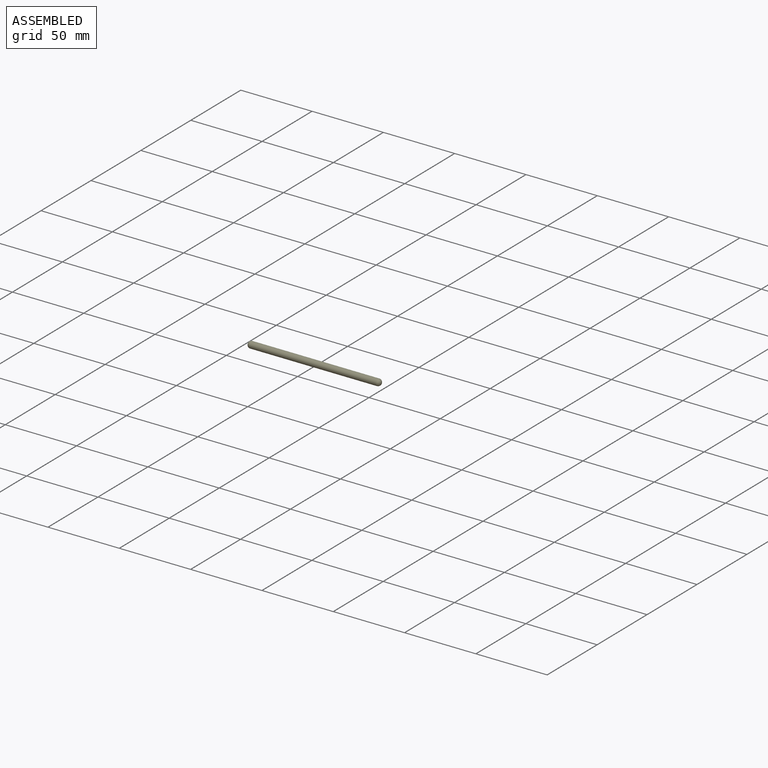
[diagram: assembled view]
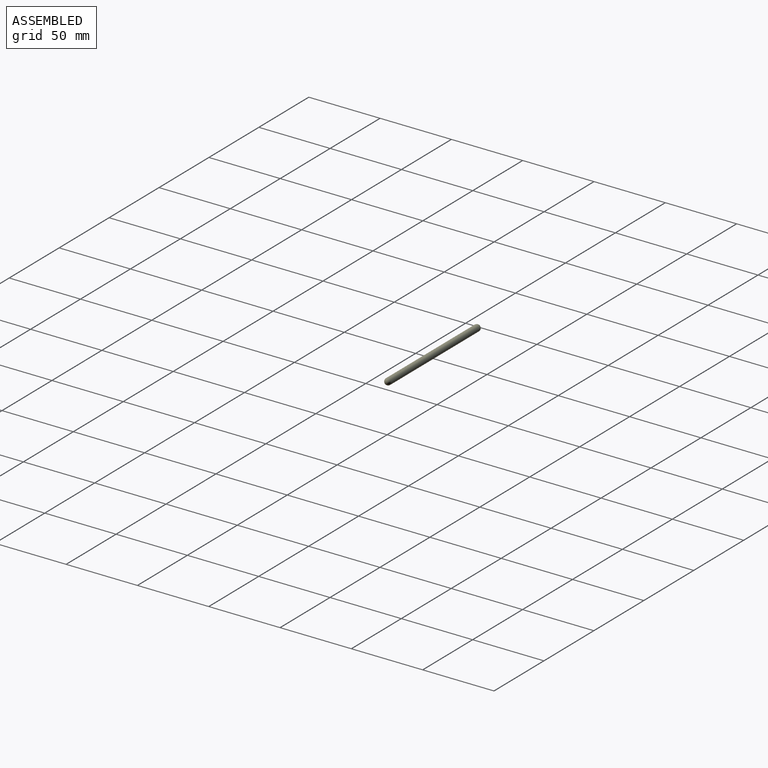
[diagram: assembled view, second angle]
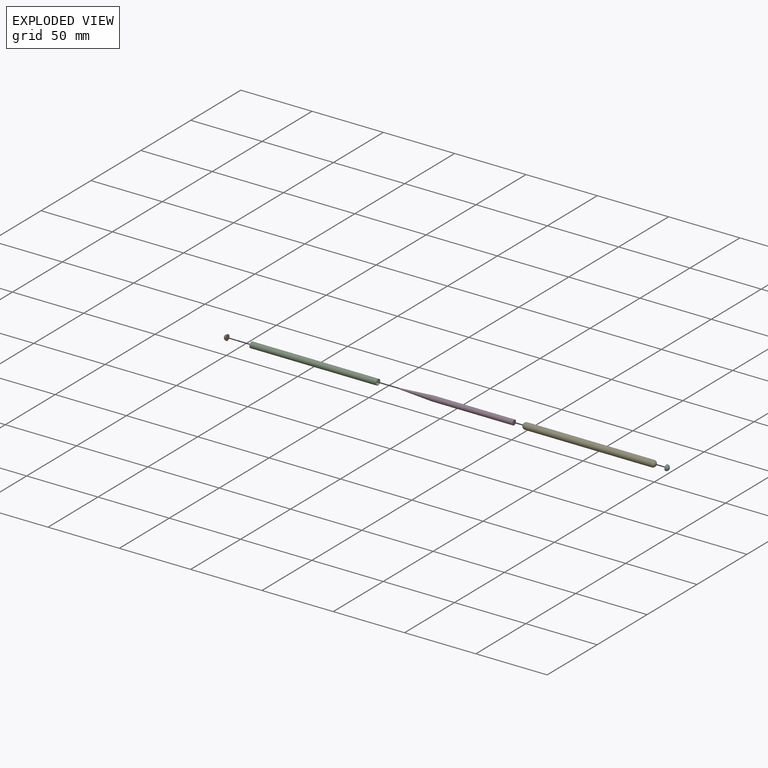
[diagram: exploded view]
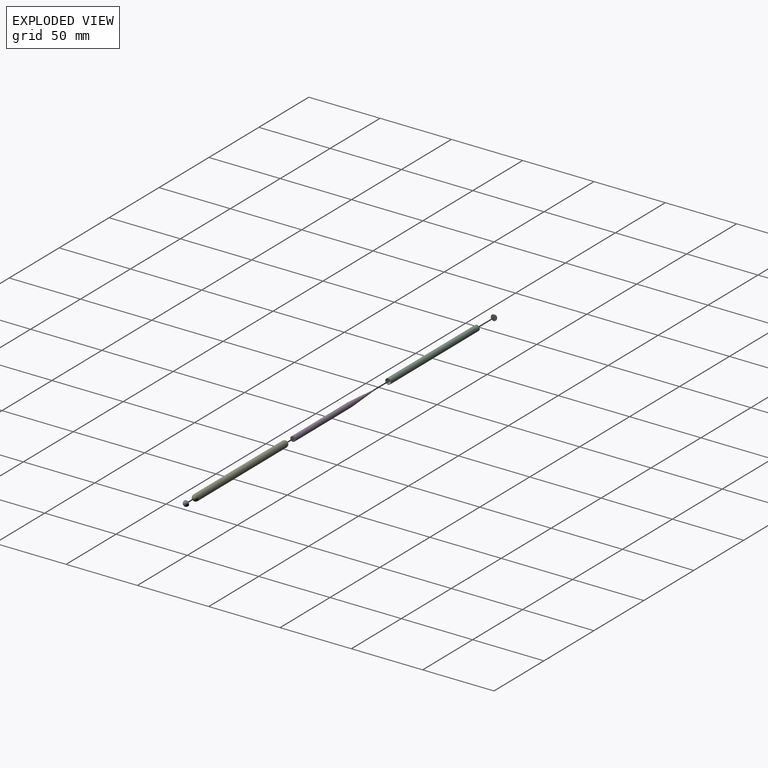
[diagram: exploded view, second angle]
ASSEMBLY  parts=6 mates=10
PART A: 4 faces, bbox 2.5x0.6x0.6 mm
  f0: cylinder r=0.22mm len=2.54mm, axis (-1,0,0), area 3.4mm2, adj f2,f3
  f1: cylinder r=0.32mm len=2.54mm, axis (-1,0,0), area 5.1mm2, adj f2,f3
  f2: plane 0.64x0.64mm, normal (1,0,0), area 0.2mm2, adj f0,f1
  f3: plane 0.64x0.64mm, normal (-1,0,0), area 0.2mm2, adj f0,f1
PART B: 2 faces, bbox 2x4.1x4.1 mm
  f0: sphere r=2.03mm, area 25.9mm2, adj f1
  f1: plane 4.06x4.06mm, normal (-1,0,0), area 13mm2, adj f0
PART C: 6 faces, bbox 88.9x4.1x4.1 mm
  f0: cylinder r=1.78mm len=57.15mm, axis (-1,0,0), area 638.5mm2, adj f1,f5
  f1: plane 4.06x4.06mm, normal (1,0,0), area 3mm2, adj f0,f2
  f2: cylinder r=2.03mm len=88.9mm, axis (-1,0,0), area 1135mm2, adj f1,f3
  f3: plane 4.06x4.06mm, normal (-1,0,0), area 12.9mm2, adj f2,f4
  f4: cone r=0.13mm half-angle=1.1deg, axis (1,0,0), area 7.6mm2, adj f3,f5
  f5: cone r=0.25mm half-angle=3.4deg, axis (1,0,0), area 162.4mm2, adj f0,f4
PART D: 5 faces, bbox 88.9x3.6x3.6 mm
  f0: plane 3.56x3.56mm, normal (1,0,0), area 9.9mm2, adj f1
  f1: cylinder r=1.78mm len=57.15mm, axis (-1,0,0), area 638.5mm2, adj f0,f2
  f2: cone r=1.78mm half-angle=3.4deg, axis (1,0,0), area 162.4mm2, adj f1,f3
  f3: cone r=0.25mm half-angle=1.1deg, axis (1,0,0), area 7.6mm2, adj f2,f4
  f4: plane 0.25x0.25mm, normal (-1,0,0), area 0.1mm2, adj f3
PART E: 6 faces, bbox 93.3x4.6x4.6 mm
  f0: torus R=0mm, axis (-1,0,0), area 31.8mm2, adj f1
  f1: cylinder r=2.29mm len=88.9mm, axis (-1,0,0), area 1276.9mm2, adj f0,f2
  f2: torus R=0mm, axis (-1,0,0), area 31.8mm2, adj f1
  f3: sphere r=2.03mm, area 25.9mm2, adj f4
  f4: cylinder r=2.03mm len=88.9mm, axis (-1,0,0), area 1135mm2, adj f3,f5
  f5: sphere r=2.03mm, area 25.9mm2, adj f4
PART F: same geometry as B
PLACE A t=(-41.44,13.57,7.25)mm
PLACE B rot(axis=(0,0.71,0.71),180deg) t=(-41.94,13.57,7.25)mm
PLACE C t=(2.51,13.57,7.25)mm
PLACE D t=(2.51,13.57,7.25)mm
PLACE E t=(2.51,13.57,7.25)mm
PLACE F t=(46.96,13.57,7.25)mm
MATE planar D.f1 <-> C.f0  axis (-1,0,0) through (-41.94,13.57,7.25)mm
MATE planar B.f1 <-> C.f0  axis (1,0,0) through (-41.94,13.57,7.25)mm
MATE planar E.f1 <-> C.f0  axis (-1,0,0) through (46.96,13.57,7.25)mm
MATE cylindrical C.f0 <-> D.f1  axis (-1,0,0) through (46.96,13.57,7.25)mm
MATE slider F.f1 <-> C.f0  axis (-1,0,0) through (46.96,13.57,7.25)mm
MATE cylindrical B.f1 <-> C.f0  axis (1,0,0) through (-41.94,13.57,7.25)mm
MATE planar A.f1 <-> D.f1  axis (-1,0,0) through (-41.44,13.57,7.25)mm
MATE cylindrical E.f1 <-> C.f0  axis (-1,0,0) through (2.51,13.57,7.25)mm
MATE planar F.f1 <-> D.f1  axis (-1,0,0) through (46.96,13.57,7.25)mm
MATE cylindrical A.f0 <-> D.f1  axis (-1,0,0) through (-41.44,13.57,7.25)mm
